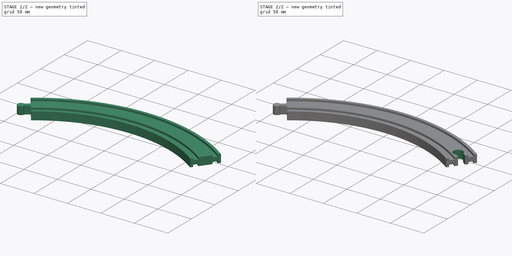
[diagram: build sequence overview — one tinted view per stage of 2, left to right]
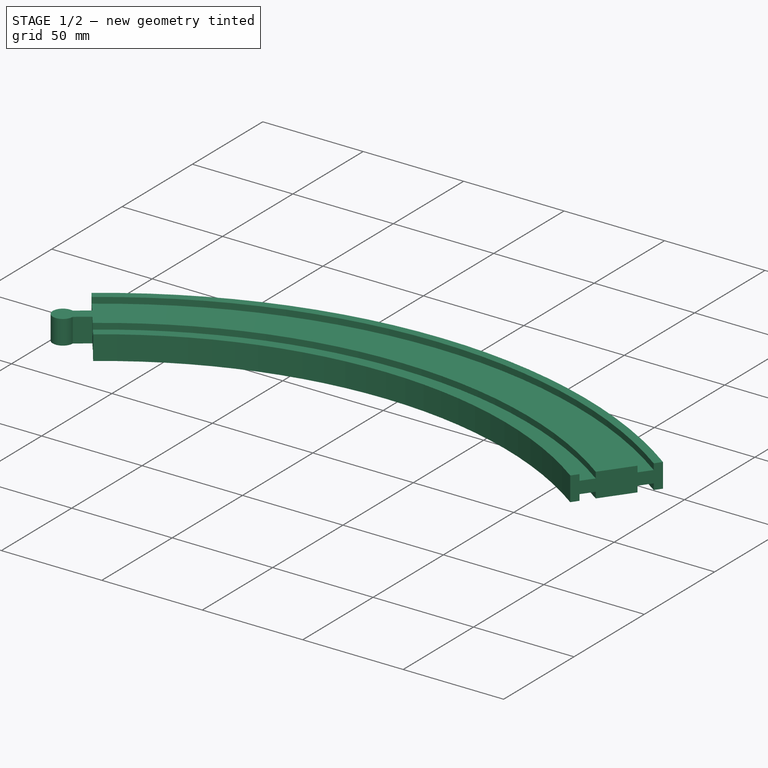
[diagram: stage 1 of 2 — iso view after this stage's code; geometry added in this stage tinted green]
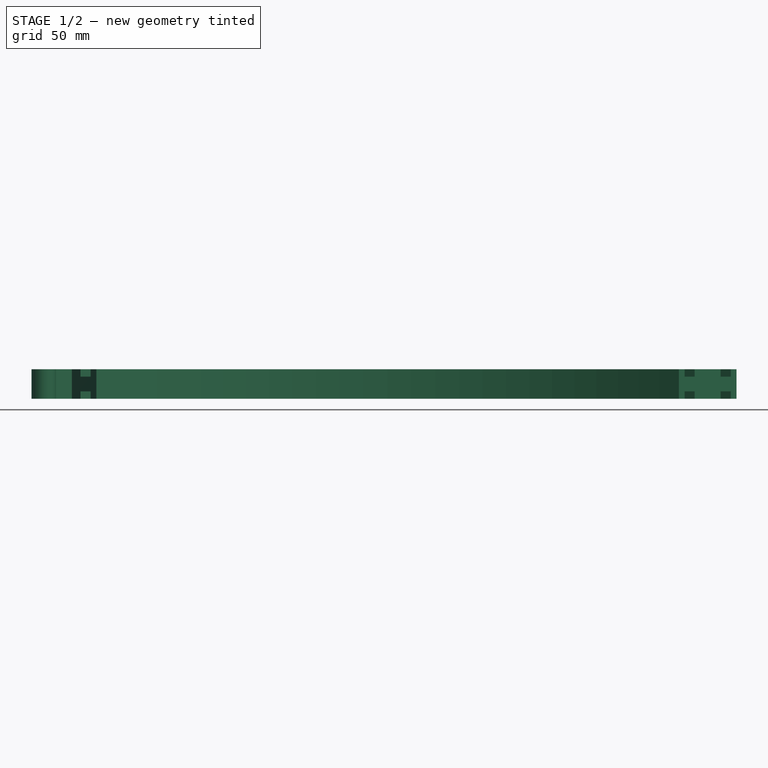
[diagram: stage 1 of 2 — front view after this stage's code; geometry added in this stage tinted green]
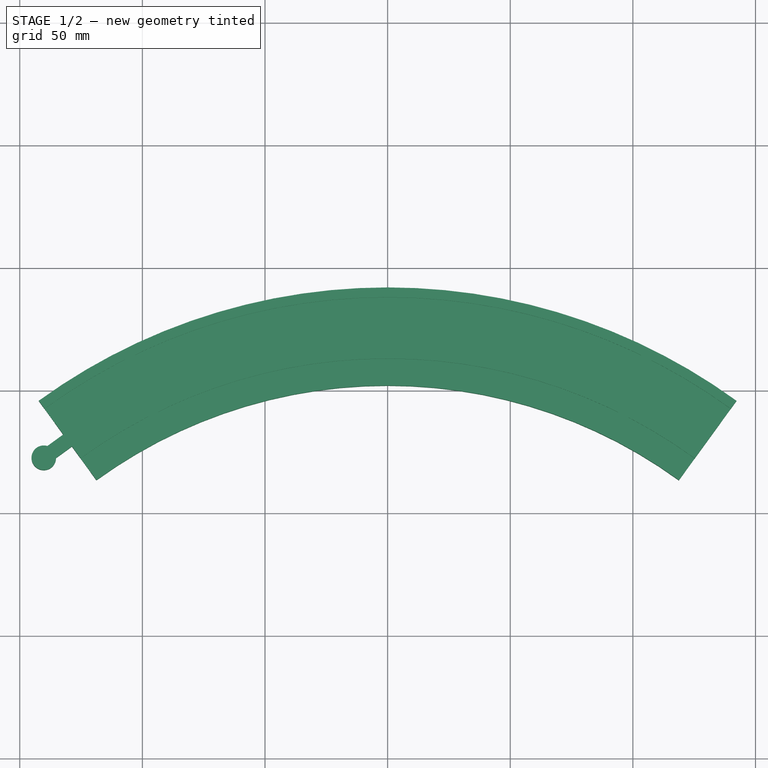
[diagram: stage 1 of 2 — top view after this stage's code; geometry added in this stage tinted green]
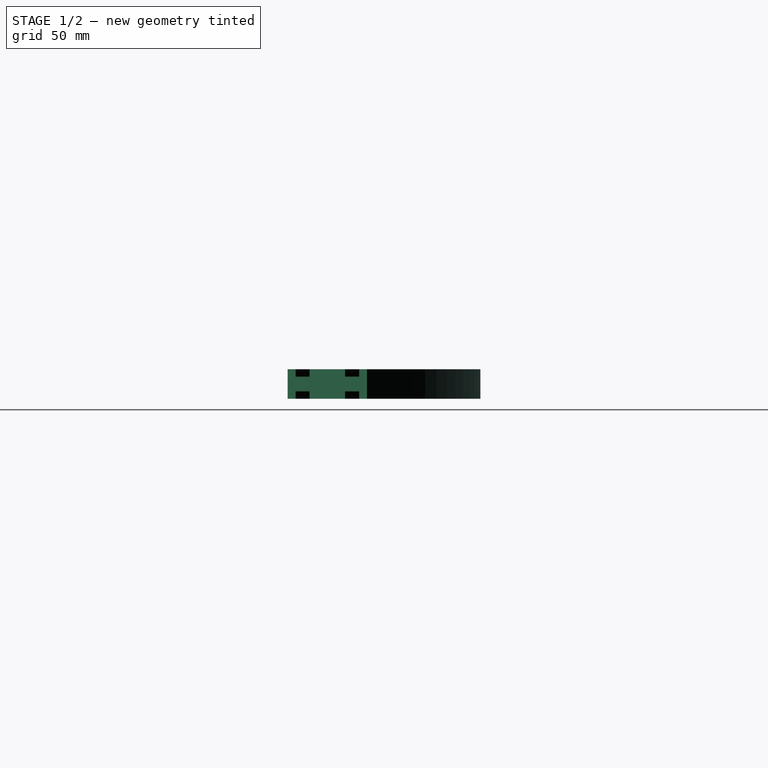
[diagram: stage 1 of 2 — right view after this stage's code; geometry added in this stage tinted green]
FCSTD DOCUMENT  (FreeCAD 0.19R24291 (Git))
Label: 222mm R 72degree track curve mk2
License: All rights reserved
LicenseURL: http://en.wikipedia.org/wiki/All_rights_reserved
objects: Sketcher::SketchObject×4, PartDesign::ShapeBinder×4, PartDesign::Body×2, PartDesign::Plane×1, PartDesign::AdditivePipe×1, PartDesign::Pocket×1, PartDesign::Point×1, PartDesign::Pad×1
note: 18 computed .brp shape members not serialized (recipe doc carries the construction recipe); baked Part::Feature solids carry a one-line shape summary decoded from their .brp

FEATURE [Sketcher::SketchObject] Sketch
  FullyConstrained = true
  MapMode = 5
  Support = -> [XY_Plane]
  sketch-geometry (7):
    g0: Circle CenterX=0 CenterY=0 CenterZ=0 NormalX=0 NormalY=0 NormalZ=1 AngleXU=0 Radius=222
    g1: LineSegment StartX=0 StartY=0 StartZ=0 EndX=130.488 EndY=179.602 EndZ=0
    g2: LineSegment StartX=0 StartY=0 StartZ=0 EndX=-130.488 EndY=179.602 EndZ=0
    g3: ArcOfCircle CenterX=0 CenterY=0 CenterZ=0 NormalX=0 NormalY=0 NormalZ=1 AngleXU=0 Radius=222 StartAngle=0.942478 EndAngle=2.19911
    g4: LineSegment StartX=0 StartY=0 StartZ=0 EndX=0 EndY=222 EndZ=0
    g5: LineSegment StartX=0 StartY=222 StartZ=0 EndX=130.488 EndY=179.602 EndZ=0
    g6: LineSegment StartX=0 StartY=222 StartZ=0 EndX=-130.488 EndY=179.602 EndZ=0
  constraints (17):
    c: Coincident(g0,g-1)
    c: Radius(g0) = 222
    c: Coincident(g1,g-1)
    c: PointOnObject(g1,g0)
    c: Coincident(g2,g-1)
    c: Angle(g1,g2) = 1.25664
    c: Coincident(g3,g-1)
    c: Coincident(g3,g1)
    c: Coincident(g3,g2)
    c: Coincident(g4,g3)
    c: PointOnObject(g4,g3)
    c: Vertical(g4)
    c: Coincident(g5,g4)
    c: Coincident(g5,g3)
    c: Coincident(g6,g4)
    c: Coincident(g6,g3)
    c: Equal(g5,g6)
FEATURE [PartDesign::Plane] DatumPlane
  Length = 489.867
  MapMode = 8
  Placement = pos=(-130.488,179.602,0) rot=(0.33896,0.665247,0.665247;2.48798rad)
  ResizeMode = 0
  Support = -> [Sketch]
  Width = 80.3167
FEATURE [Sketcher::SketchObject] Sketch002
  FullyConstrained = true
  MapMode = 5
  Placement = pos=(-130.488,179.602,0) rot=(0.33896,0.665247,0.665247;2.48798rad)
  Support = -> [DatumPlane]
  sketch-geometry (28):
    g0: LineSegment StartX=-20 StartY=6 StartZ=0 EndX=-20 EndY=-6 EndZ=0
    g1: LineSegment StartX=-20 StartY=-6 StartZ=0 EndX=-16 EndY=-6 EndZ=0
    g2: LineSegment StartX=-16 StartY=-6 StartZ=0 EndX=-16 EndY=-3 EndZ=0
    g3: LineSegment StartX=-16 StartY=-3 StartZ=0 EndX=-9 EndY=-3 EndZ=0
    g4: LineSegment StartX=-9 StartY=-3 StartZ=0 EndX=-9 EndY=-6 EndZ=0
    g5: LineSegment StartX=-9 StartY=-6 StartZ=0 EndX=9 EndY=-6 EndZ=0
    g6: LineSegment StartX=9 StartY=-6 StartZ=0 EndX=9 EndY=-3 EndZ=0
    g7: LineSegment StartX=9 StartY=-3 StartZ=0 EndX=16 EndY=-3 EndZ=0
    g8: LineSegment StartX=16 StartY=-3 StartZ=0 EndX=16 EndY=-6 EndZ=0
    g9: LineSegment StartX=16 StartY=-6 StartZ=0 EndX=20 EndY=-6 EndZ=0
    g10: LineSegment StartX=20 StartY=-6 StartZ=0 EndX=20 EndY=6 EndZ=0
    g11: LineSegment StartX=20 StartY=6 StartZ=0 EndX=16 EndY=6 EndZ=0
    g12: LineSegment StartX=16 StartY=6 StartZ=0 EndX=16 EndY=3 EndZ=0
    g13: LineSegment StartX=16 StartY=3 StartZ=0 EndX=9 EndY=3 EndZ=0
    g14: LineSegment StartX=9 StartY=3 StartZ=0 EndX=9 EndY=6 EndZ=0
    g15: LineSegment StartX=9 StartY=6 StartZ=0 EndX=-9 EndY=6 EndZ=0
    g16: LineSegment StartX=-9 StartY=6 StartZ=0 EndX=-9 EndY=3 EndZ=0
    g17: LineSegment StartX=-9 StartY=3 StartZ=0 EndX=-16 EndY=3 EndZ=0
    g18: LineSegment StartX=-16 StartY=3 StartZ=0 EndX=-16 EndY=6 EndZ=0
    g19: LineSegment StartX=-16 StartY=6 StartZ=0 EndX=-20 EndY=6 EndZ=0
    g20: LineSegment StartX=9 StartY=6 StartZ=0 EndX=16 EndY=6 EndZ=0
    g21: LineSegment StartX=-9 StartY=6 StartZ=0 EndX=-16 EndY=6 EndZ=0
    g22: LineSegment StartX=-16 StartY=-6 StartZ=0 EndX=-9 EndY=-6 EndZ=0
    g23: LineSegment StartX=16 StartY=-3 StartZ=0 EndX=16 EndY=3 EndZ=0
    g24: LineSegment StartX=-9 StartY=3 StartZ=0 EndX=9 EndY=3 EndZ=0
    g25: LineSegment StartX=-9 StartY=-3 StartZ=0 EndX=9 EndY=-3 EndZ=0
    g26: LineSegment StartX=-20 StartY=6 StartZ=0 EndX=20 EndY=-6 EndZ=0
    g27: LineSegment StartX=-20 StartY=-6 StartZ=0 EndX=20 EndY=6 EndZ=0
  constraints (76):
    c: Coincident(g1,g0)
    c: Horizontal(g1)
    c: Coincident(g2,g1)
    c: Vertical(g2)
    c: Coincident(g3,g2)
    c: Horizontal(g3)
    c: Coincident(g4,g3)
    c: Coincident(g5,g4)
    c: Horizontal(g5)
    c: Coincident(g6,g5)
    c: Coincident(g7,g6)
    c: Horizontal(g7)
    c: Coincident(g8,g7)
    c: Coincident(g9,g8)
    c: Coincident(g10,g9)
    c: Coincident(g11,g10)
    c: Coincident(g12,g11)
    c: Coincident(g13,g12)
    c: Coincident(g14,g13)
    c: Vertical(g14)
    c: Coincident(g15,g14)
    c: Coincident(g16,g15)
    c: Coincident(g17,g16)
    c: Horizontal(g17)
    c: Coincident(g18,g17)
    c: Vertical(g18)
    c: Coincident(g19,g18)
    c: Coincident(g19,g0)
    c: Horizontal(g19)
    c: Horizontal(g15)
    c: Horizontal(g13)
    c: Horizontal(g11)
    c: Horizontal(g9)
    c: Vertical(g0)
    c: Vertical(g16)
    c: Vertical(g12)
    c: Vertical(g10)
    c: Vertical(g8)
    c: Vertical(g6)
    c: Vertical(g4)
    c: Equal(g0,g10)
    c: Equal(g3,g17)
    c: Equal(g3,g13)
    c: Equal(g3,g7)
    c: Equal(g5,g15)
    c: DistanceY(g0,g0) = 12
    c: DistanceX(g1,g1) = 4
    c: Equal(g1,g9)
    c: DistanceX(g3,g3) = 7
    c: DistanceX(g5,g5) = 18
    c: Coincident(g20,g14)
    c: Coincident(g20,g11)
    c: Coincident(g21,g15)
    c: Coincident(g21,g18)
    c: Coincident(g22,g1)
    c: Coincident(g22,g4)
    c: Horizontal(g22)
    c: Horizontal(g21)
    c: Horizontal(g20)
    c: Coincident(g23,g7)
    c: Coincident(g23,g12)
    c: Vertical(g23)
    c: DistanceY(g8,g7) = 3
    c: DistanceY(g7,g12) = 6
    c: Coincident(g24,g16)
    c: Coincident(g24,g13)
    c: Horizontal(g24)
    c: Coincident(g25,g3)
    c: Coincident(g25,g6)
    c: Horizontal(g25)
    c: Coincident(g26,g0)
    c: Coincident(g26,g9)
    c: Coincident(g27,g0)
    c: Coincident(g27,g10)
    c: PointOnObject(g-1,g26)
    c: PointOnObject(g-1,g27)
FEATURE [PartDesign::AdditivePipe] AdditivePipe
  AuxilleryCurvelinear = true
  AuxillerySpineTangent = false
  Binormal = (0,0,0)
  Mode = 0
  Placement = pos=(-130.488,179.602,0) rot=(0.33896,0.665247,0.665247;2.48798rad)
  Profile = -> Sketch002
  Spine = -> Sketch
  SpineTangent = false
  Transformation = 0
  Transition = 0
FEATURE [PartDesign::Body] Body
  Group = -> [Sketch,DatumPlane,Sketch002,AdditivePipe,Sketch004,Pocket]
  Origin = -> Origin
  Tip = -> Pocket
FEATURE [PartDesign::ShapeBinder] CopyPocket
  Placement = pos=(-130.488,179.602,0) rot=(0.33896,0.665247,0.665247;2.48798rad)
  TraceSupport = false
FEATURE [PartDesign::ShapeBinder] CopyPocket001
  Placement = pos=(-130.488,179.602,0) rot=(0.33896,0.665247,0.665247;2.48798rad)
  TraceSupport = false
FEATURE [PartDesign::ShapeBinder] CopyPocket002
  Placement = pos=(-130.488,179.602,0) rot=(0.33896,0.665247,0.665247;2.48798rad)
  TraceSupport = false
FEATURE [PartDesign::ShapeBinder] CopyPocket003
  Placement = pos=(-130.488,179.602,0) rot=(0.33896,0.665247,0.665247;2.48798rad)
  TraceSupport = false
FEATURE [PartDesign::Point] DatumPoint
  AttacherType = Attacher::AttachEnginePoint
  MapMode = 37
  Placement = pos=(-130.488,179.602,0.642857) rot=(0,0,1;0rad)
  Support = -> [CopyPocket,CopyPocket001,CopyPocket002,CopyPocket003]
FEATURE [Sketcher::SketchObject] Sketch005
  ExternalGeometry = -> [CopyPocket]
  FullyConstrained = true
  MapMode = 5
  Support = -> [XY_Plane001]
  sketch-geometry (6):
    g0: LineSegment StartX=-132.252 StartY=182.029 StartZ=0 EndX=-128.725 EndY=177.175 EndZ=0
    g1: LineSegment StartX=-128.725 StartY=177.175 StartZ=0 EndX=-125.198 EndY=172.321 EndZ=0
    g2: LineSegment StartX=-132.252 StartY=182.029 StartZ=0 EndX=-135.778 EndY=186.883 EndZ=0
    g3: LineSegment StartX=-132.252 StartY=182.029 StartZ=0 EndX=-138.724 EndY=177.327 EndZ=0
    g4: LineSegment StartX=-128.725 StartY=177.175 StartZ=0 EndX=-135.197 EndY=172.472 EndZ=0
    g5: ArcOfCircle CenterX=-140.197 CenterY=172.548 CenterZ=0 NormalX=0 NormalY=0 NormalZ=1 AngleXU=0 Radius=5 StartAngle=1.27182 EndAngle=6.268
  constraints (17):
    c: PointOnObject(g0,g-3)
    c: PointOnObject(g0,g-3)
    c: Coincident(g1,g0)
    c: Coincident(g1,g-3)
    c: Coincident(g2,g0)
    c: Coincident(g2,g-3)
    c: Equal(g2,g1)
    c: Distance(g0) = 6
    c: Coincident(g3,g0)
    c: Coincident(g4,g0)
    c: Diameter(g5) = 10
    c: Equal(g3,g4)
    c: Angle(g3,g0) = 1.5708
    c: Angle(g0,g4) = 1.5708
    c: Distance(g3) = 8
    c: Coincident(g5,g3)
    c: Coincident(g5,g4)
FEATURE [PartDesign::Pad] Pad
  Direction = (1,1,1)
  Length = 12
  Length2 = 100
  Midplane = true
  Profile = -> Sketch005
  Type = 0
FEATURE [PartDesign::Body] Body001
  Group = -> [DatumPoint,CopyPocket,CopyPocket001,CopyPocket002,CopyPocket003,Sketch005,Pad]
  Origin = -> Origin001
  Tip = -> Pad
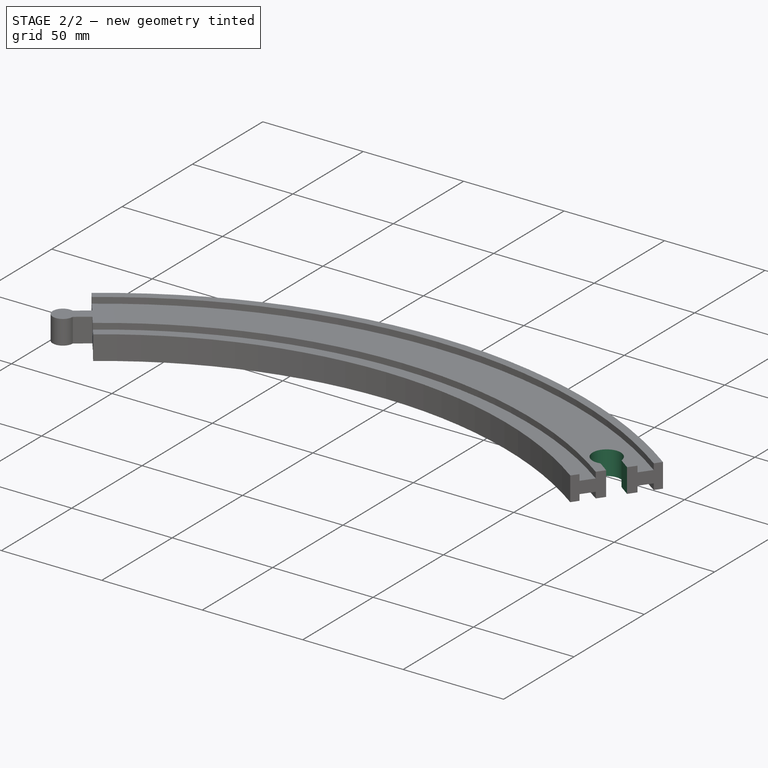
[diagram: stage 2 of 2 — iso view after this stage's code; geometry added in this stage tinted green]
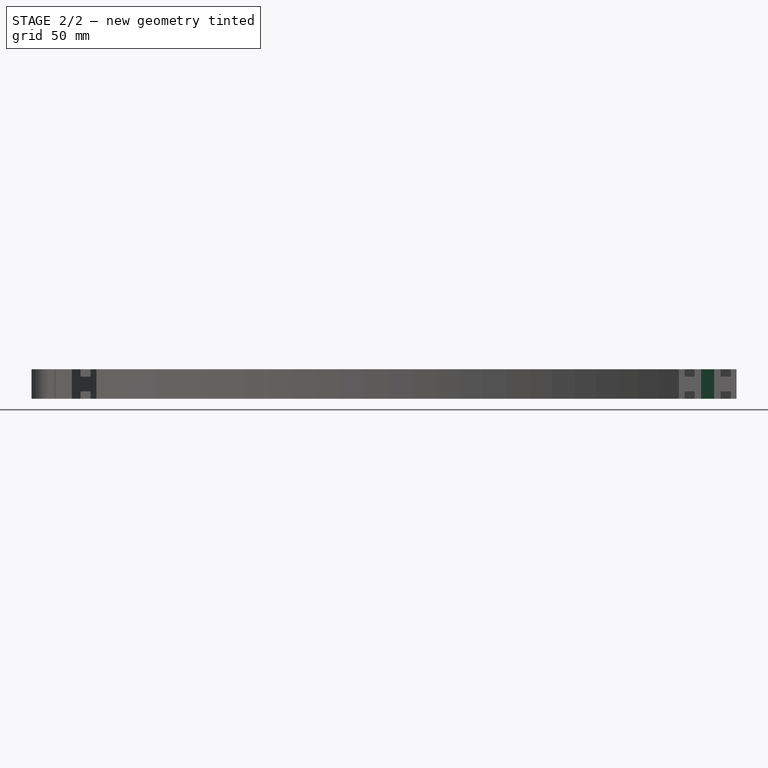
[diagram: stage 2 of 2 — front view after this stage's code; geometry added in this stage tinted green]
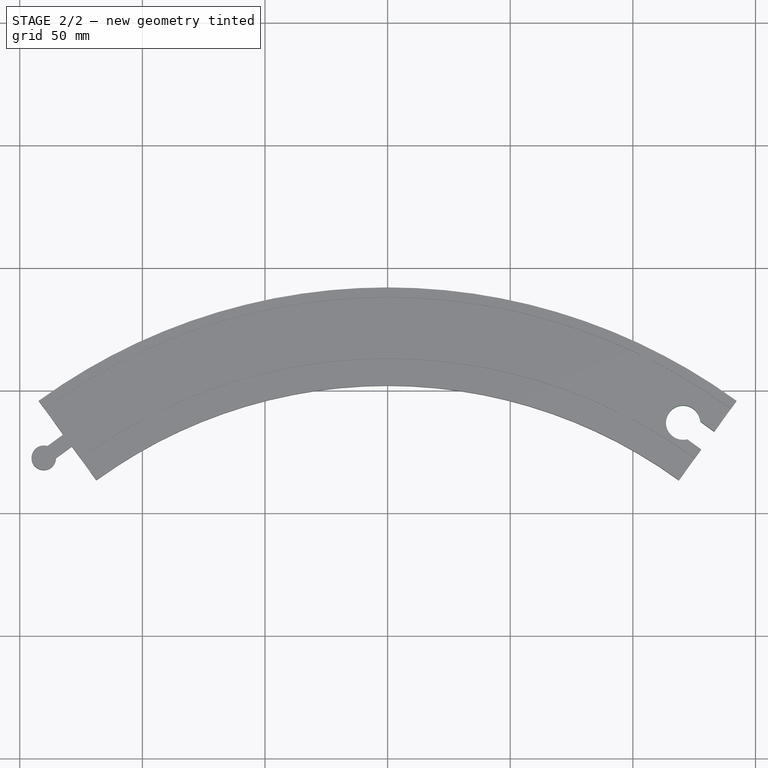
[diagram: stage 2 of 2 — top view after this stage's code; geometry added in this stage tinted green]
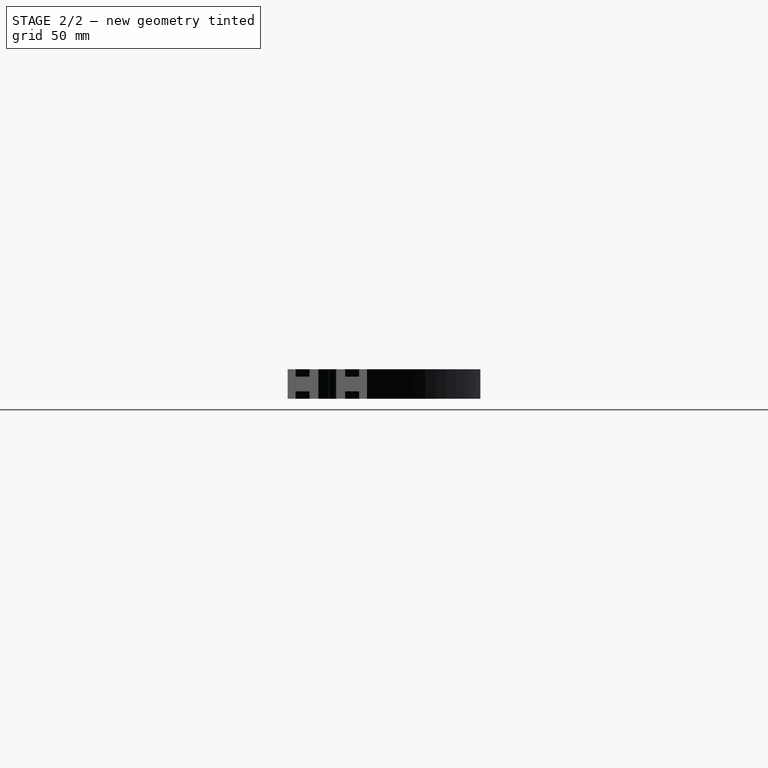
[diagram: stage 2 of 2 — right view after this stage's code; geometry added in this stage tinted green]
FEATURE [Sketcher::SketchObject] Sketch004
  ExternalGeometry = -> [AdditivePipe]
  FullyConstrained = true
  MapMode = 5
  Placement = pos=(-130.488,179.602,6) rot=(0,0,-1;0.942478rad)
  Support = -> [AdditivePipe]
  sketch-geometry (6):
    g0: LineSegment StartX=152.008 StartY=215.414 StartZ=0 EndX=145.35 EndY=213.251 EndZ=0
    g1: LineSegment StartX=154.789 StartY=206.855 StartZ=0 EndX=148.131 EndY=204.692 EndZ=0
    g2: LineSegment StartX=152.008 StartY=215.414 StartZ=0 EndX=154.789 EndY=206.855 EndZ=0
    g3: ArcOfCircle CenterX=141.641 CenterY=207.315 CenterZ=0 NormalX=0 NormalY=0 NormalZ=1 AngleXU=0 Radius=7 StartAngle=1.01238 EndAngle=5.89912
    g4: LineSegment StartX=154.789 StartY=206.855 StartZ=0 EndX=156.179 EndY=202.575 EndZ=0
    g5: LineSegment StartX=152.008 StartY=215.414 StartZ=0 EndX=150.617 EndY=219.694 EndZ=0
  constraints (17):
    c: PointOnObject(g0,g-3)
    c: PointOnObject(g1,g-3)
    c: Coincident(g2,g0)
    c: Coincident(g2,g1)
    c: Equal(g0,g1)
    c: Angle(g0,g-3) = 1.5708
    c: Angle(g-3,g1) = 1.5708
    c: Coincident(g4,g1)
    c: Coincident(g4,g-3)
    c: Coincident(g5,g0)
    c: Coincident(g5,g-3)
    c: Equal(g5,g4)
    c: Diameter(g3) = 14
    c: Distance(g0) = 7
    c: Distance(g2) = 9
    c: Coincident(g3,g0)
    c: Coincident(g3,g1)
FEATURE [PartDesign::Pocket] Pocket
  BaseFeature = -> AdditivePipe
  Length = 5
  Length2 = 100
  Placement = pos=(-130.488,179.602,0) rot=(0.33896,0.665247,0.665247;2.48798rad)
  Profile = -> Sketch004
  Type = 1
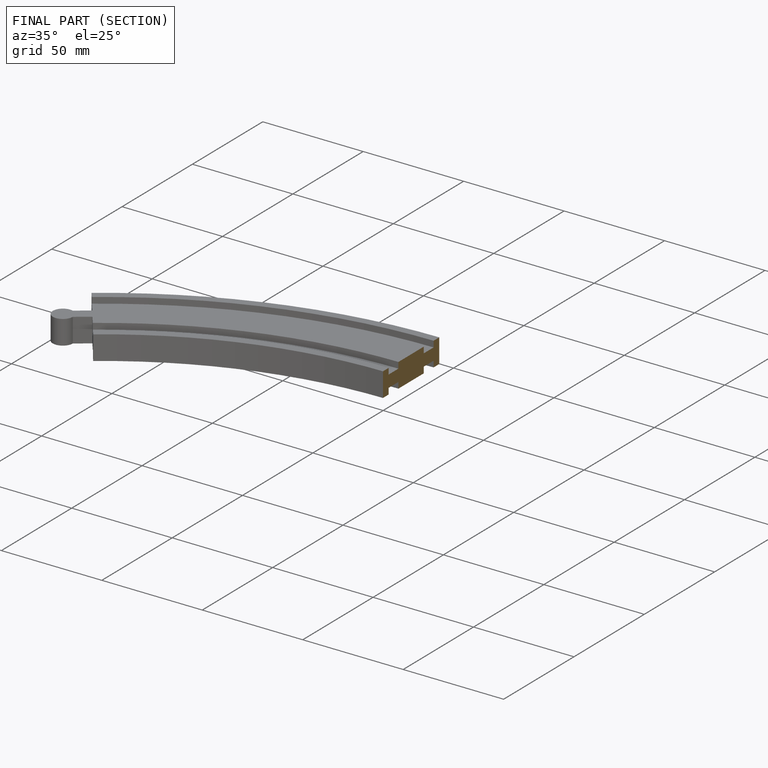
[diagram: finished part — half-section view (interior)]
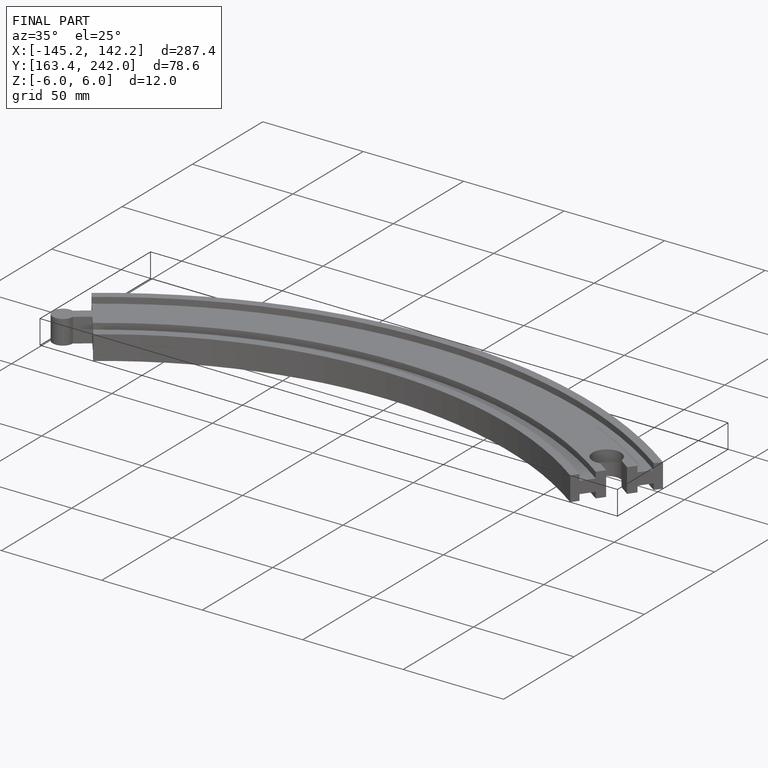
[diagram: finished part — iso view with bounding-box wireframe]
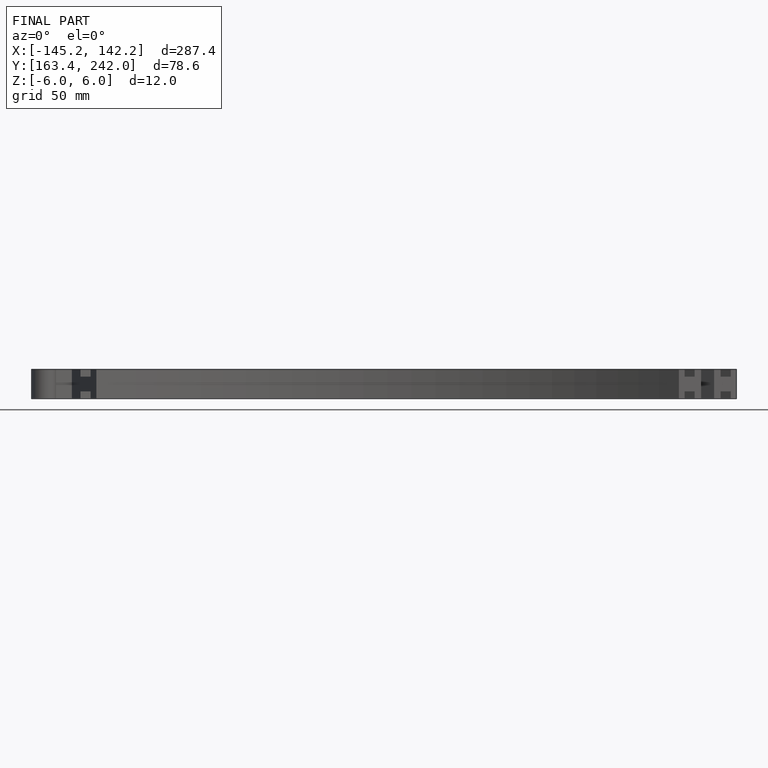
[diagram: finished part — front view with bounding-box wireframe]
